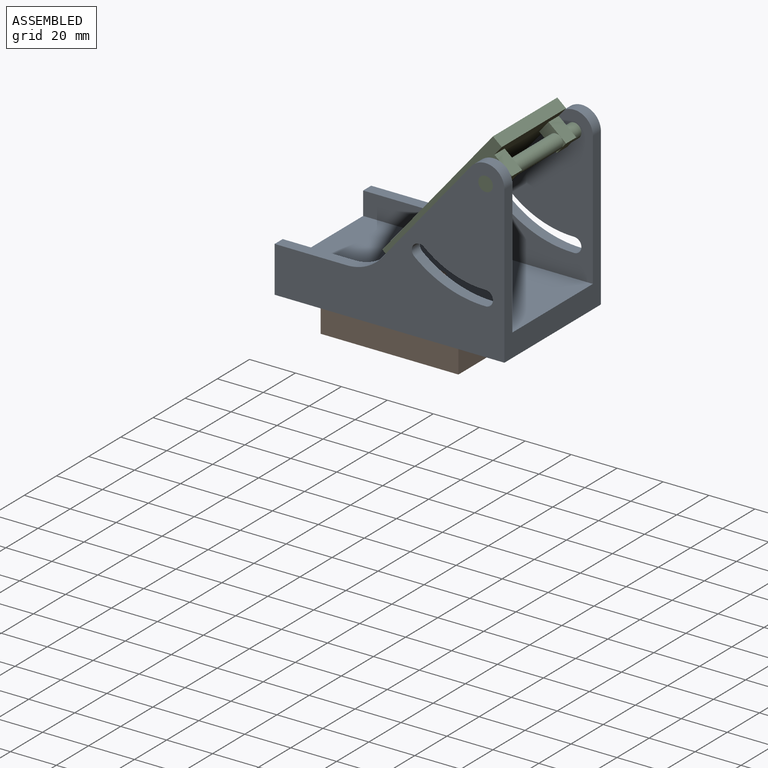
[diagram: assembled view]
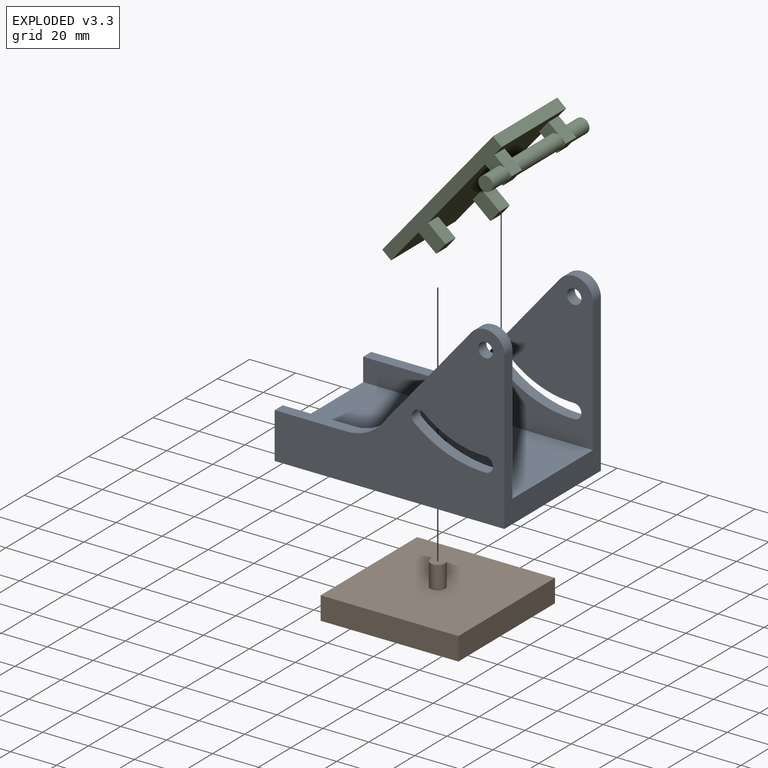
[diagram: exploded view]
GUIDED TOUR — FREECAD ASSEMBLY "Wedge"

This assembly has 3 components, labeled P0..P2 below (a component is one placed body or linked part; the same part can appear more than once), held together by 2 modeled joints. A joint is a constraint between two components; its type names the relative motion it leaves free:
  FASTENED — locks the two components together rigidly (no relative motion),
  REVOLUTE — leaves rotation about the listed axis free (a hinge).
Axis/direction vectors are unit vectors and 'through' points are millimeter coordinates, both in the assembly's world frame.

MATES
  1. FASTENED [Fixed] "Joint": P1 <-> P0, direction (0.000, 0.000, 1.000) through (0.00, 0.00, 20.00) mm
  2. REVOLUTE [Revolute] "Joint001": P0 <-> P2, axis (0.000, -1.000, 0.000) through (41.83, 30.00, 78.17) mm

ASSEMBLY ORDER
  1. P2 — the base component [order verified]
  2. P0 [order verified]
  3. P1 [order verified]
Order-tag legend:
  [order verified] — this step's position reverses a verified removal order: the component was checked to insert without passing through the ones already placed.

Of the 3 components, 3 carry a construction recipe — the FreeCAD feature program (sketches with constraints, then the solid features that consume them) that regenerates the part from scratch, quoted from this document or from the linked companion document it references; the rest are supplied as boundary geometry only. The tour below walks the components in assembly order: each is shown spotlighted twice — in the assembled view, then in the exploded view, where a leader line traces a displaced component back to its assembled socket (components that stay in place when exploded have no leader line; saturated green if recipe-attached, orange if geometry-only; every other component desaturated gray) — followed by its recipe or geometry summary and the mates that hold it.
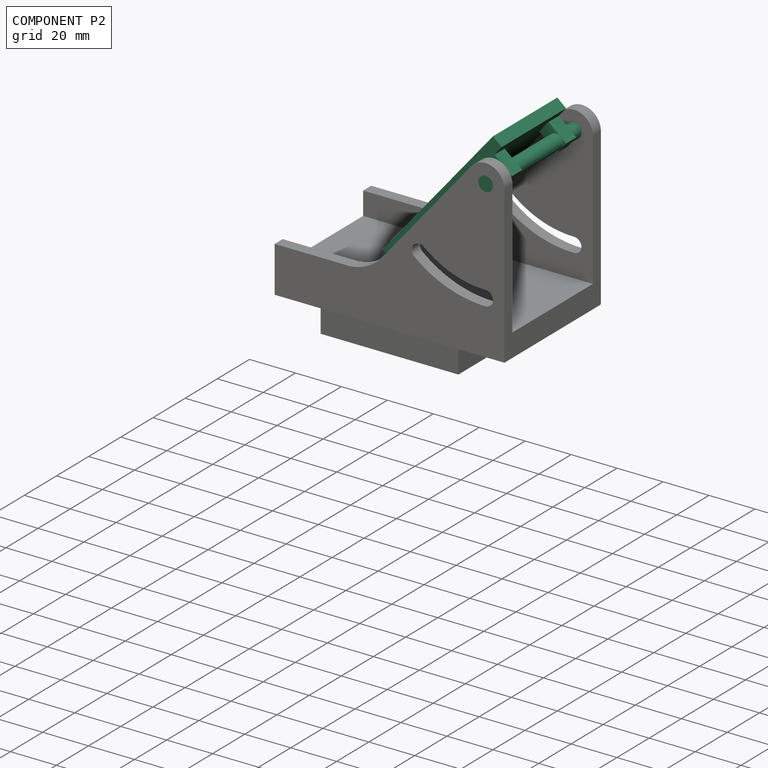
[diagram: component P2 — assembled]
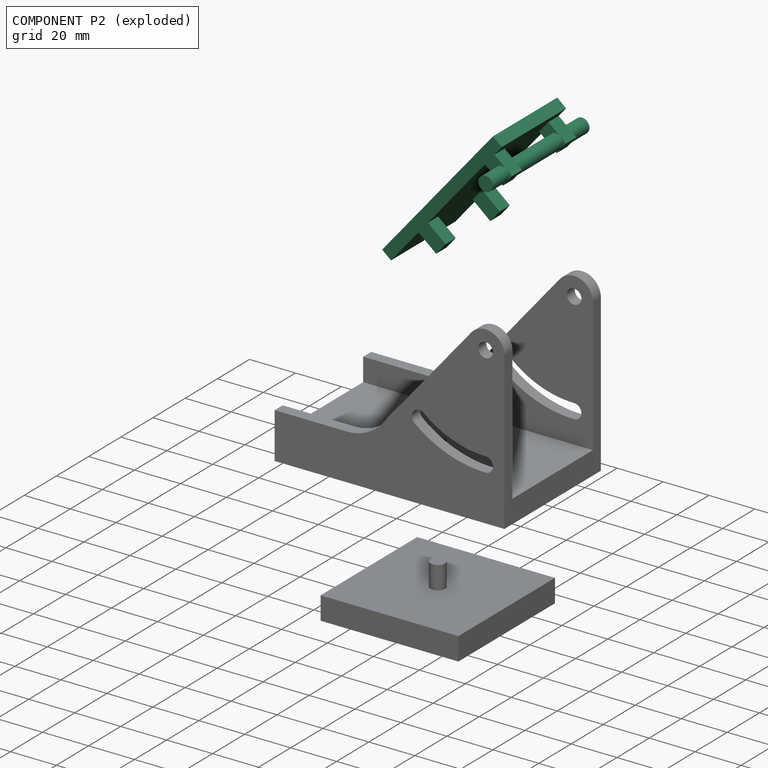
[diagram: component P2 — exploded]
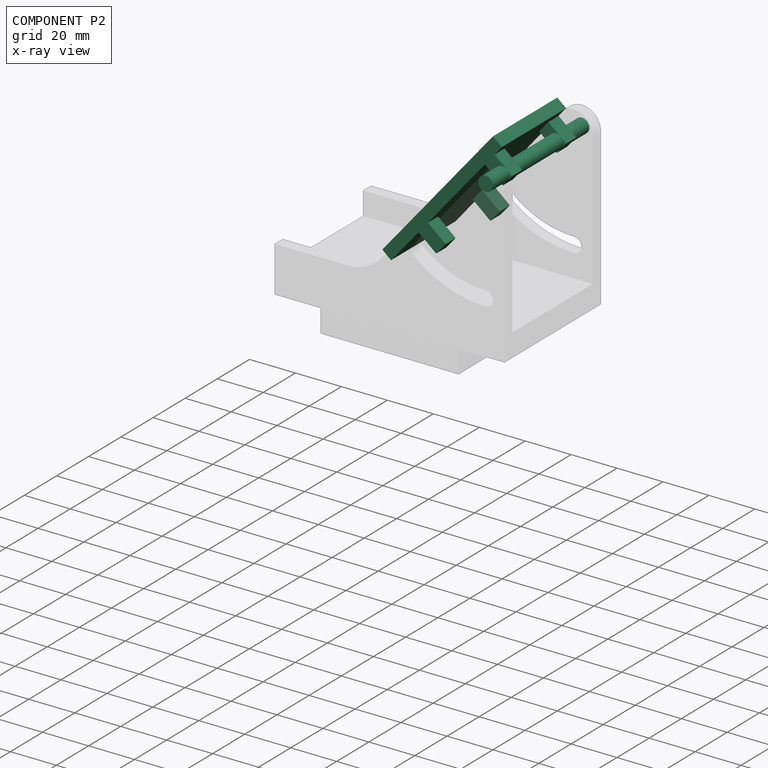
[diagram: component P2 — x-ray view]
COMPONENT P2 — recipe-attached ("Teeter001", modeled in this document).
Held by: REVOLUTE mate "Joint001" to P0.
Construction recipe (the document's own serialized feature program — sketch geometry with constraints, then the solid features built on it; lengths are millimeters unless a unit is written):

FEATURE [PartDesign::ShapeBinder] ShapeBinder
  Support = -> [Pocket]
  TraceSupport = false
FEATURE [Sketcher::SketchObject] Sketch005
  ArcFitTolerance = 1e-06
  AttachmentSupport = -> [XY_Plane002]
  ExternalGeometry = -> [ShapeBinder]
  FullyConstrained = true
  MakeInternals = false
  MapMode = 5
  sketch-geometry (7):
    g0: LineSegment StartX=-25 StartY=20 StartZ=0 EndX=-25 EndY=-20 EndZ=0
    g1: LineSegment StartX=-25 StartY=-20 StartZ=0 EndX=50 EndY=-20 EndZ=0
    g2: LineSegment StartX=50 StartY=-20 StartZ=0 EndX=50 EndY=20 EndZ=0
    g3: LineSegment StartX=50 StartY=20 StartZ=0 EndX=-25 EndY=20 EndZ=0
    g4: GeomPoint [constr] X=0 Y=0 Z=0
    g5: LineSegment [constr] StartX=-50 StartY=25 StartZ=0 EndX=-50 EndY=-25 EndZ=0
    g6: LineSegment [constr] StartX=50 StartY=25 StartZ=0 EndX=50 EndY=-25 EndZ=0
  constraints (16):
    c: Coincident(g0,g1)
    c: Coincident(g1,g2)
    c: Coincident(g2,g3)
    c: Coincident(g3,g0)
    c: Vertical(g0)
    c: Horizontal(g1)
    c: Horizontal(g3)
    c: Coincident(g4,g-1)
    c: Distance(g-3,g3) = 5
    c: Coincident(g5,g-3)
    c: Coincident(g5,g-4)
    c: Coincident(g6,g-3)
    c: Coincident(g6,g-4)
    c: Tangent(g2,g6)
    c: Distance(g5,g1) = 5
    c: Distance(g2,g0) = 75
FEATURE [PartDesign::Pad] Pad004
  Direction = (0,0,1)
  Length = 5
  Length2 = 10
  Profile = -> Sketch005
  ReferenceAxis = -> Sketch005 [N_Axis]
  Refine = true
  Suppressed = false
  Type = 0
FEATURE [Sketcher::SketchObject] Sketch006
  ArcFitTolerance = 1e-06
  AttachmentSupport = -> [Pad004]
  ExternalGeometry = -> [ShapeBinder,Pad004]
  FullyConstrained = true
  MakeInternals = false
  MapMode = 5
  Placement = pos=(0,0,0) rot=(1,0,0;3.14159rad)
  sketch-geometry (21):
    g0: LineSegment StartX=38.65 StartY=20 StartZ=0 EndX=38.65 EndY=13.65 EndZ=0
    g1: LineSegment StartX=38.65 StartY=13.65 StartZ=0 EndX=45 EndY=13.65 EndZ=0
    g2: LineSegment StartX=45 StartY=13.65 StartZ=0 EndX=45 EndY=20 EndZ=0
    g3: LineSegment StartX=45 StartY=20 StartZ=0 EndX=38.65 EndY=20 EndZ=0
    g4: GeomPoint [constr] X=41.825 Y=16.825 Z=0
    g5: LineSegment StartX=38.65 StartY=-20 StartZ=0 EndX=45 EndY=-20 EndZ=0
    g6: LineSegment StartX=45 StartY=-20 StartZ=0 EndX=45 EndY=-13.65 EndZ=0
    g7: LineSegment StartX=45 StartY=-13.65 StartZ=0 EndX=38.65 EndY=-13.65 EndZ=0
    g8: LineSegment StartX=38.65 StartY=-13.65 StartZ=0 EndX=38.65 EndY=-20 EndZ=0
    g9: GeomPoint [constr] X=41.825 Y=-16.825 Z=0
    g10: LineSegment [constr] StartX=45 StartY=25 StartZ=0 EndX=45 EndY=-25 EndZ=0
    g11: LineSegment StartX=-6.35 StartY=20 StartZ=0 EndX=-6.35 EndY=13.65 EndZ=0
    g12: LineSegment StartX=-6.35 StartY=13.65 StartZ=0 EndX=-1.6e-14 EndY=13.65 EndZ=0
    g13: LineSegment StartX=-1.6e-14 StartY=13.65 StartZ=0 EndX=-1.6e-14 EndY=20 EndZ=0
    g14: LineSegment StartX=-1.6e-14 StartY=20 StartZ=0 EndX=-6.35 EndY=20 EndZ=0
    g15: LineSegment StartX=-6.35 StartY=-13.65 StartZ=0 EndX=-6.35 EndY=-20 EndZ=0
    g16: LineSegment StartX=-6.35 StartY=-20 StartZ=0 EndX=-1.42e-14 EndY=-20 EndZ=0
    g17: LineSegment StartX=-1.43e-14 StartY=-20 StartZ=0 EndX=-1.43e-14 EndY=-13.65 EndZ=0
    g18: LineSegment StartX=-1.43e-14 StartY=-13.65 StartZ=0 EndX=-6.35 EndY=-13.65 EndZ=0
    g19: LineSegment [constr] StartX=-6.35 StartY=20 StartZ=0 EndX=-6.35 EndY=-20 EndZ=0
    g20: GeomPoint [constr] X=-3.175 Y=16.825 Z=0
  constraints (49):
    c: Coincident(g0,g1)
    c: Coincident(g1,g2)
    c: Coincident(g2,g3)
    c: Coincident(g3,g0)
    c: Vertical(g0)
    c: Horizontal(g1)
    c: Symmetric(g2,g0,g4)
    c: Coincident(g5,g6)
    c: Coincident(g6,g7)
    c: Coincident(g7,g8)
    c: Coincident(g8,g5)
    c: Horizontal(g7)
    c: Vertical(g8)
    c: Symmetric(g7,g5,g9)
    c: Equal(g3,g-3)
    c: Equal(g3,g2)
    c: Coincident(g10,g-3)
    c: Coincident(g10,g-4)
    c: Tangent(g2,g10)
    c: Equal(g8,g7)
    c: Tangent(g6,g10)
    c: Equal(g7,g1)
    c: Tangent(g3,g-5)
    c: Coincident(g11,g12)
    c: Coincident(g12,g13)
    c: Coincident(g13,g14)
    c: Coincident(g14,g11)
    c: Vertical(g11)
    c: Vertical(g13)
    c: Horizontal(g12)
    c: Coincident(g15,g16)
    c: Coincident(g16,g17)
    c: Coincident(g17,g18)
    c: Coincident(g18,g15)
    c: Vertical(g15)
    c: Vertical(g17)
    c: Horizontal(g18)
    c: Tangent(g14,g-5)
    c: Equal(g13,g12)
    c: Equal(g13,g0)
    c: Equal(g17,g8)
    c: Equal(g18,g17)
    c: Tangent(g16,g-6)
    c: Tangent(g5,g-6)
    c: Coincident(g19,g11)
    c: PointOnObject(g19,g-6)
    c: Tangent(g15,g19)
    c: Symmetric(g13,g11,g20)
    c: DistanceX(g20,g4) = 45
FEATURE [PartDesign::Pad] Pad005
  BaseFeature = -> Pad004
  Direction = (0,0,-1)
  Length = 10
  Length2 = 10
  Profile = -> Sketch006
  ReferenceAxis = -> Sketch006 [N_Axis]
  Refine = true
  Suppressed = false
  Type = 0
FEATURE [PartDesign::Plane] DatumPlane
  AttachmentOffset = pos=(0,0,0) rot=(1,0,0;1.5708rad)
  AttachmentSupport = -> [Pad005]
  Length = 62.2474
  MapMode = 45
  Placement = pos=(41.825,7.2e-15,-5) rot=(0.57735,0.57735,0.57735;4.18879rad)
  ResizeMode = 0
  Width = 87.2474
FEATURE [Sketcher::SketchObject] Sketch007
  ArcFitTolerance = 1e-06
  AttachmentSupport = -> [DatumPlane]
  ExternalGeometry = -> [Pad005]
  FullyConstrained = true
  MakeInternals = false
  MapMode = 5
  Placement = pos=(41.825,7.2e-15,-5) rot=(0.57735,0.57735,0.57735;4.18879rad)
  sketch-geometry (1):
    g0: Circle CenterX=-1.825 CenterY=9.6e-15 CenterZ=0 NormalX=0 NormalY=0 NormalZ=1 AngleXU=0 Radius=3.175
  constraints (3):
    c: Diameter(g0) = 6.35
    c: Tangent(g0,g-4)
    c: Tangent(g0,g-3)
FEATURE [PartDesign::Pad] Pad006
  BaseFeature = -> Pad005
  Direction = (0,1,0)
  Length = 4
  Length2 = 10
  Midplane = true
  Offset = -5
  Profile = -> Sketch007
  ReferenceAxis = -> Sketch007 [N_Axis]
  Refine = true
  Suppressed = false
  Type = 3
  UpToFace = -> ShapeBinder [Face1]
FEATURE [PartDesign::Pad] Pad007
  BaseFeature = -> Pad006
  Direction = (0,1,0)
  Length = 10
  Length2 = 10
  Offset = 10
  Profile = -> Sketch007
  ReferenceAxis = -> Sketch007 [N_Axis]
  Refine = true
  Reversed = true
  Suppressed = false
  Type = 3
  UpToFace = -> Pad006 [Face3]
FEATURE [PartDesign::Body] Body002  label="Teeter"
  AllowCompound = false
  Group = -> [Sketch005,ShapeBinder,Pad004,Sketch006,Pad005,DatumPlane,Sketch007,Pad006,Pad007]
  Origin = -> Origin002
  Placement = pos=(0,0,88) rot=(0,1,0;5.58505rad)
  Tip = -> Pad007
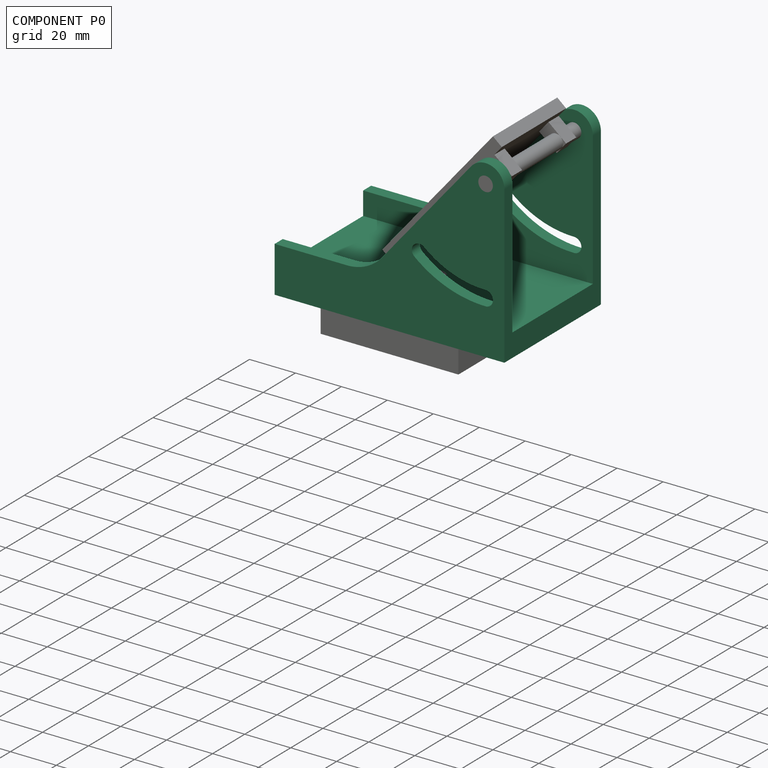
[diagram: component P0 — assembled]
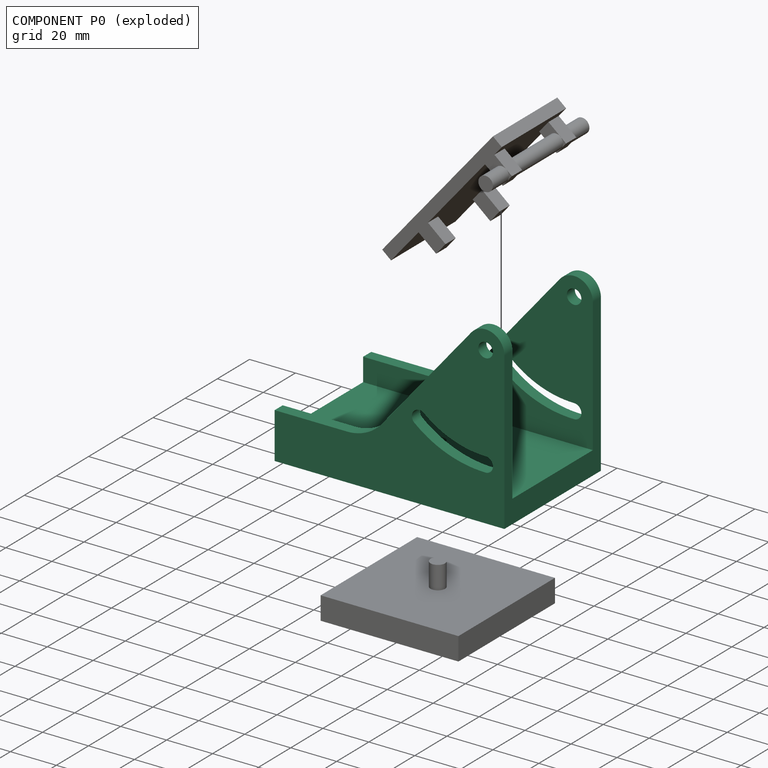
[diagram: component P0 — exploded]
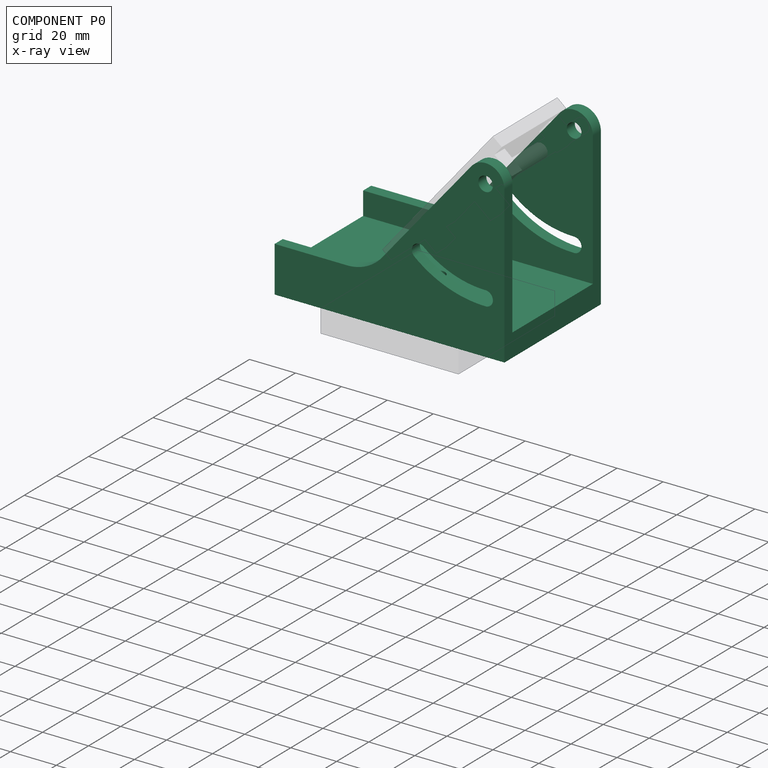
[diagram: component P0 — x-ray view]
COMPONENT P0 — recipe-attached ("Base001", modeled in this document).
Held by: FASTENED mate "Joint" to P1; REVOLUTE mate "Joint001" to P2.
Construction recipe (the document's own serialized feature program — sketch geometry with constraints, then the solid features built on it; lengths are millimeters unless a unit is written):

FEATURE [Sketcher::SketchObject] Sketch002
  ArcFitTolerance = 1e-06
  AttachmentSupport = -> [XY_Plane001]
  FullyConstrained = true
  MakeInternals = false
  MapMode = 5
  sketch-geometry (6):
    g0: LineSegment StartX=-50 StartY=-30 StartZ=0 EndX=50 EndY=-30 EndZ=0
    g1: LineSegment StartX=50 StartY=-30 StartZ=0 EndX=50 EndY=30 EndZ=0
    g2: LineSegment StartX=50 StartY=30 StartZ=0 EndX=-50 EndY=30 EndZ=0
    g3: LineSegment StartX=-50 StartY=30 StartZ=0 EndX=-50 EndY=-30 EndZ=0
    g4: GeomPoint [constr] X=0 Y=0 Z=0
    g5: Circle CenterX=0 CenterY=0 CenterZ=0 NormalX=0 NormalY=0 NormalZ=1 AngleXU=0 Radius=3.175
  constraints (14):
    c: Coincident(g0,g1)
    c: Coincident(g1,g2)
    c: Coincident(g2,g3)
    c: Coincident(g3,g0)
    c: Horizontal(g0)
    c: Horizontal(g2)
    c: Vertical(g1)
    c: Vertical(g3)
    c: Symmetric(g2,g0,g4)
    c: Distance(g1,g3) = 100
    c: Distance(g0,g2) = 60
    c: Coincident(g4,g-1)
    c: Diameter(g5) = 6.35
    c: Coincident(g5,g4)
FEATURE [PartDesign::Pad] Pad002  label="Bottom"
  Direction = (0,0,1)
  Length = 10
  Length2 = 10
  Profile = -> Sketch002
  ReferenceAxis = -> Sketch002 [N_Axis]
  Refine = true
  Suppressed = false
  Type = 0
FEATURE [Sketcher::SketchObject] Sketch003
  ArcFitTolerance = 1e-06
  AttachmentSupport = -> [Pad002]
  ExternalGeometry = -> [Pad002]
  FullyConstrained = true
  MakeInternals = false
  MapMode = 5
  Placement = pos=(0,-30,0) rot=(1,0,0;1.5708rad)
  sketch-geometry (16):
    g0: Circle CenterX=41.825 CenterY=68.175 CenterZ=0 NormalX=0 NormalY=0 NormalZ=1 AngleXU=0 Radius=3.175
    g1: ArcOfCircle CenterX=41.825 CenterY=68.175 CenterZ=0 NormalX=0 NormalY=0 NormalZ=1 AngleXU=0 Radius=48.175 StartAngle=4.01426 EndAngle=4.71239
    g2: ArcOfCircle CenterX=41.825 CenterY=23.175 CenterZ=0 NormalX=0 NormalY=0 NormalZ=1 AngleXU=0 Radius=3.175 StartAngle=4.71239 EndAngle=7.85398
    g3: ArcOfCircle CenterX=12.8996 CenterY=33.703 CenterZ=0 NormalX=0 NormalY=0 NormalZ=1 AngleXU=0 Radius=3.175 StartAngle=0.872665 EndAngle=4.01426
    g4: ArcOfCircle CenterX=41.825 CenterY=68.175 CenterZ=0 NormalX=0 NormalY=0 NormalZ=1 AngleXU=0 Radius=41.825 StartAngle=4.01426 EndAngle=4.71239
    g5: LineSegment [constr] StartX=12.8996 StartY=33.703 StartZ=0 EndX=41.825 EndY=68.175 EndZ=0
    g6: LineSegment [constr] StartX=41.825 StartY=68.175 StartZ=0 EndX=41.825 EndY=23.175 EndZ=0
    g7: ArcOfCircle CenterX=41.825 CenterY=68.175 CenterZ=0 NormalX=0 NormalY=0 NormalZ=1 AngleXU=0 Radius=8.175 StartAngle=7e-16 EndAngle=2.44346
    g8: LineSegment StartX=-3.27559 StartY=27.1442 StartZ=0 EndX=35.5626 EndY=73.4298 EndZ=0
    g9: LineSegment StartX=-50 StartY=10 StartZ=0 EndX=50 EndY=10 EndZ=0
    g10: LineSegment StartX=50 StartY=10 StartZ=0 EndX=50 EndY=68.175 EndZ=0
    g11: LineSegment StartX=-50 StartY=10 StartZ=0 EndX=-50 EndY=20 EndZ=0
    g12: ArcOfCircle CenterX=-18.5965 CenterY=40 CenterZ=0 NormalX=0 NormalY=0 NormalZ=1 AngleXU=0 Radius=20 StartAngle=4.71239 EndAngle=5.58505
    g13: LineSegment StartX=-50 StartY=20 StartZ=0 EndX=-18.5965 EndY=20 EndZ=0
    g14: GeomPoint X=-6.98962 Y=10 Z=0
    g15: LineSegment [constr] StartX=12.8996 StartY=33.703 StartZ=0 EndX=-6.98962 EndY=10 EndZ=0
  constraints (37):
    c: Diameter(g0) = 6.35
    c: Coincident(g1,g4)
    c: Tangent(g4,g3) = 1.5708
    c: Tangent(g4,g2) = 1.5708
    c: Tangent(g1,g3) = -1.5708
    c: Tangent(g1,g2) = -1.5708
    c: Coincident(g1,g0)
    c: Equal(g3,g0)
    c: Coincident(g5,g3)
    c: Coincident(g5,g0)
    c: Coincident(g6,g0)
    c: Coincident(g6,g2)
    c: Angle(g5,g6) = 0.698132
    c: Coincident(g7,g0)
    c: Distance(g7,g0) = 5
    c: Tangent(g8,g7) = 1.5708
    c: Coincident(g9,g-3)
    c: Coincident(g9,g-3)
    c: Coincident(g10,g9)
    c: Tangent(g10,g7) = -1.5708
    c: Vertical(g10)
    c: Coincident(g11,g9)
    c: Vertical(g11)
    c: Coincident(g13,g11)
    c: Tangent(g13,g12) = -1.5708
    c: Tangent(g8,g12) = -1.5708
    c: Distance(g3,g8) = 5
    c: Distance(g2,g10) = 5
    c: Horizontal(g13)
    c: Distance(g1,g9) = 10
    c: Distance(g9,g13) = 10
    c: DistanceY(g6,g6) = 45
    c: Radius(g12) = 20
    c: PointOnObject(g14,g9)
    c: Coincident(g15,g3)
    c: Coincident(g15,g14)
    c: Tangent(g15,g5)
FEATURE [PartDesign::Pad] Pad003  label="Block"
  BaseFeature = -> Pad002
  Direction = (0,-1,2e-16)
  Length = 10
  Length2 = 10
  Profile = -> Sketch003
  ReferenceAxis = -> Sketch003 [N_Axis]
  Refine = true
  Reversed = true
  Suppressed = false
  Type = 3
  UpToFace = -> Pad002 [Face3]
FEATURE [Sketcher::SketchObject] Sketch004
  ArcFitTolerance = 1e-06
  AttachmentSupport = -> [Pad003]
  ExternalGeometry = -> [Sketch003,Pad003]
  FullyConstrained = true
  MakeInternals = false
  MapMode = 5
  Placement = pos=(50,0,0) rot=(0.57735,0.57735,0.57735;2.0944rad)
  sketch-geometry (6):
    g0: LineSegment StartX=-25 StartY=76.35 StartZ=0 EndX=-25 EndY=10 EndZ=0
    g1: LineSegment StartX=-25 StartY=10 StartZ=0 EndX=25 EndY=10 EndZ=0
    g2: LineSegment StartX=25 StartY=10 StartZ=0 EndX=25 EndY=76.35 EndZ=0
    g3: LineSegment StartX=25 StartY=76.35 StartZ=0 EndX=-25 EndY=76.35 EndZ=0
    g4: LineSegment [constr] StartX=-30 StartY=10 StartZ=0 EndX=30 EndY=10 EndZ=0
    g5: LineSegment [constr] StartX=-30 StartY=76.35 StartZ=0 EndX=30 EndY=76.35 EndZ=0
  constraints (15):
    c: Coincident(g0,g1)
    c: Coincident(g1,g2)
    c: Coincident(g2,g3)
    c: Coincident(g3,g0)
    c: Vertical(g0)
    c: Vertical(g2)
    c: Horizontal(g1)
    c: Distance(g-4,g2) = 5
    c: Distance(g-3,g0) = 5
    c: Coincident(g4,g-3)
    c: PointOnObject(g4,g-5)
    c: Tangent(g4,g1)
    c: Coincident(g5,g-6)
    c: Coincident(g5,g-4)
    c: Tangent(g3,g5)
FEATURE [PartDesign::Pocket] Pocket
  BaseFeature = -> Pad003
  Direction = (-1,0,0)
  Length = 5
  Length2 = 5
  Profile = -> Sketch004
  ReferenceAxis = -> Sketch004 [N_Axis]
  Refine = true
  Suppressed = false
  Type = 1
FEATURE [PartDesign::Body] Body001  label="Base"
  AllowCompound = false
  Group = -> [Sketch002,Pad002,Sketch003,Pad003,Sketch004,Pocket]
  Origin = -> Origin001
  Tip = -> Pocket
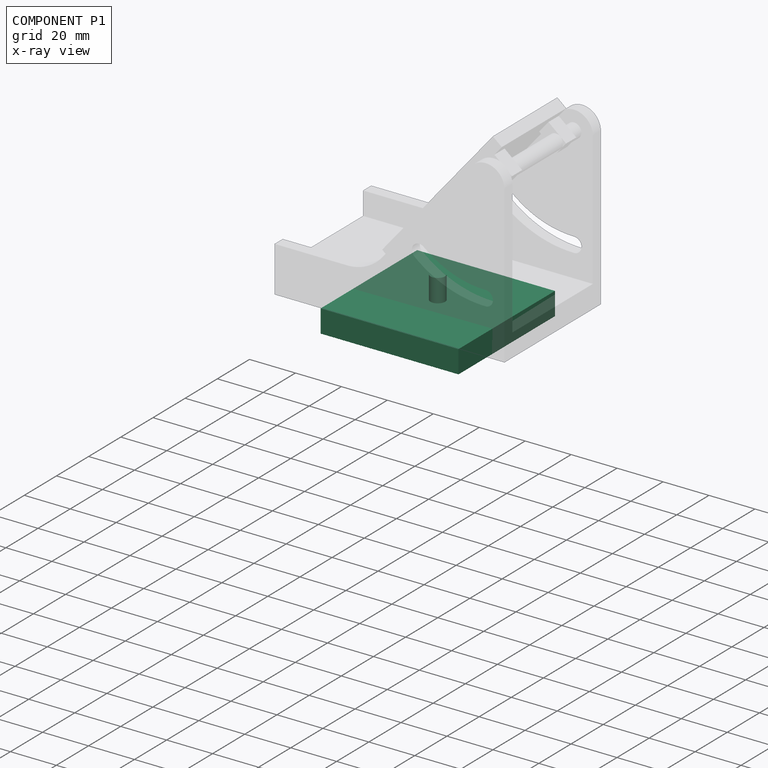
[diagram: component P1 — x-ray view]
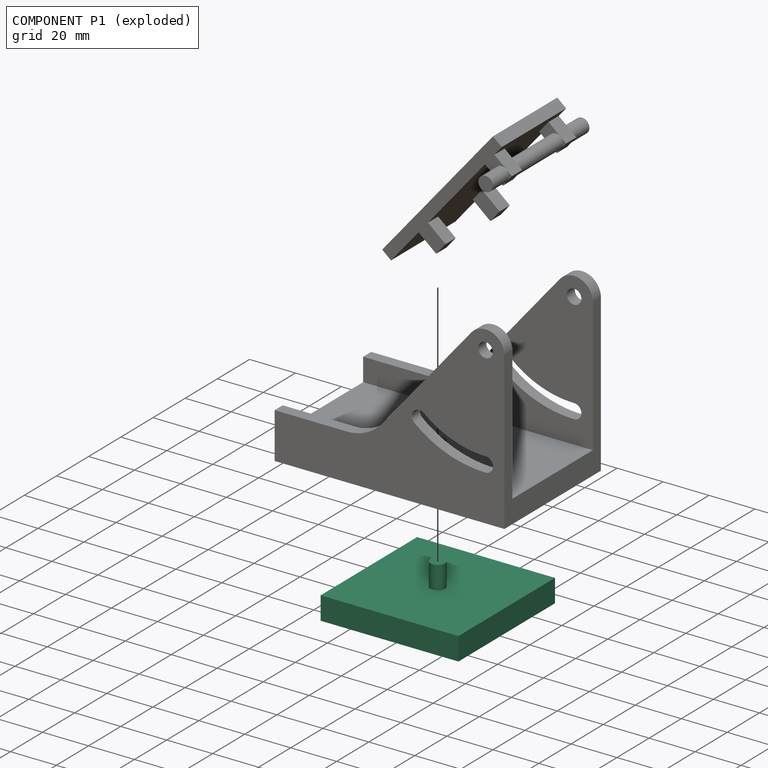
[diagram: component P1 — exploded]
COMPONENT P1 — recipe-attached ("Plate001", modeled in this document).
Held by: FASTENED mate "Joint" to P0.
Construction recipe (the document's own serialized feature program — sketch geometry with constraints, then the solid features built on it; lengths are millimeters unless a unit is written):

FEATURE [Sketcher::SketchObject] Sketch
  ArcFitTolerance = 1e-06
  AttachmentSupport = -> [XY_Plane]
  FullyConstrained = true
  MakeInternals = false
  MapMode = 5
  sketch-geometry (5):
    g0: LineSegment StartX=-30 StartY=-30 StartZ=0 EndX=30 EndY=-30 EndZ=0
    g1: LineSegment StartX=30 StartY=-30 StartZ=0 EndX=30 EndY=30 EndZ=0
    g2: LineSegment StartX=30 StartY=30 StartZ=0 EndX=-30 EndY=30 EndZ=0
    g3: LineSegment StartX=-30 StartY=30 StartZ=0 EndX=-30 EndY=-30 EndZ=0
    g4: GeomPoint [constr] X=0 Y=0 Z=0
  constraints (12):
    c: Coincident(g0,g1)
    c: Coincident(g1,g2)
    c: Coincident(g2,g3)
    c: Coincident(g3,g0)
    c: Horizontal(g0)
    c: Horizontal(g2)
    c: Vertical(g1)
    c: Vertical(g3)
    c: Symmetric(g2,g0,g4)
    c: Distance(g1,g3) = 60
    c: Distance(g0,g2) = 60
    c: Coincident(g4,g-1)
FEATURE [PartDesign::Pad] Pad
  Direction = (0,0,1)
  Length = 10
  Length2 = 10
  Profile = -> Sketch
  ReferenceAxis = -> Sketch [N_Axis]
  Refine = true
  Suppressed = false
  Type = 0
FEATURE [Sketcher::SketchObject] Sketch001
  ArcFitTolerance = 1e-06
  AttachmentSupport = -> [Pad]
  FullyConstrained = true
  MakeInternals = false
  MapMode = 5
  Placement = pos=(0,0,10) rot=(0,0,1;0rad)
  sketch-geometry (1):
    g0: Circle CenterX=0 CenterY=0 CenterZ=0 NormalX=0 NormalY=0 NormalZ=1 AngleXU=0 Radius=3.175
  constraints (2):
    c: Diameter(g0) = 6.35
    c: Coincident(g0,g-1)
FEATURE [PartDesign::Pad] Pad001
  BaseFeature = -> Pad
  Direction = (0,0,1)
  Length = 10
  Length2 = 10
  Profile = -> Sketch001
  ReferenceAxis = -> Sketch001 [N_Axis]
  Refine = true
  Suppressed = false
  Type = 0
FEATURE [PartDesign::Body] Body  label="Plate"
  AllowCompound = false
  Group = -> [Sketch,Pad,Sketch001,Pad001]
  Origin = -> Origin
  Placement = pos=(0,0,-33) rot=(0,0,1;0rad)
  Tip = -> Pad001
PROVENANCE & LICENSES
Assembly and component geometry: a FreeCAD (.FCStd) document from a public repository crawl; components, placements and joints were extracted with FreeCAD and each solid tessellated.
Construction recipes: the document's own serialized feature recipes (and, for linked parts, the recipes of companion documents from the same project).
License: as declared in the source repository (recorded in the dataset sidecar).
Joints: native FreeCAD joints and A2plus constraints are mapped to standard mate types.
Verification: 3 of this assembly's 3 components carry a construction recipe (3 from this document itself); the rest are geometry-only. Every component's tessellation passed the extraction mesh gates (mesh-volume checksum against the B-rep where available, bounding-box inflation <= 2%).
Renders: orthographic iso camera (az 35 / el 25); the floor grid conveys scale (grid pitch printed in each image; no ruler). In the exploded view each component is displaced by its stored offset vector: the offsets alone carry the explosion direction (mate normal/axis signs are not orientation cues and do not encode it), and separation distances are assigned per mate-chain, not proportionally to assembly-order depth.
